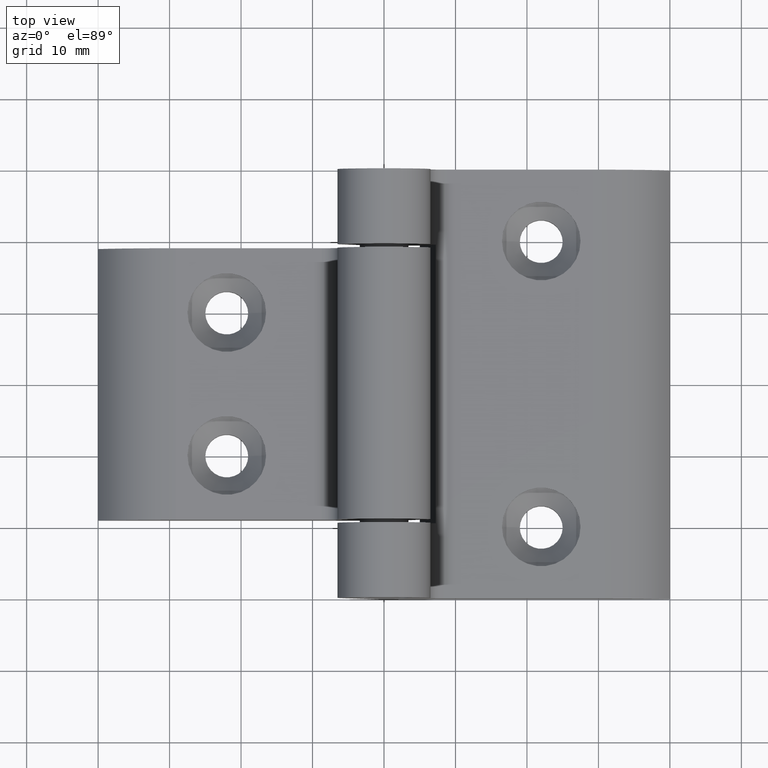
[diagram: clean part render]
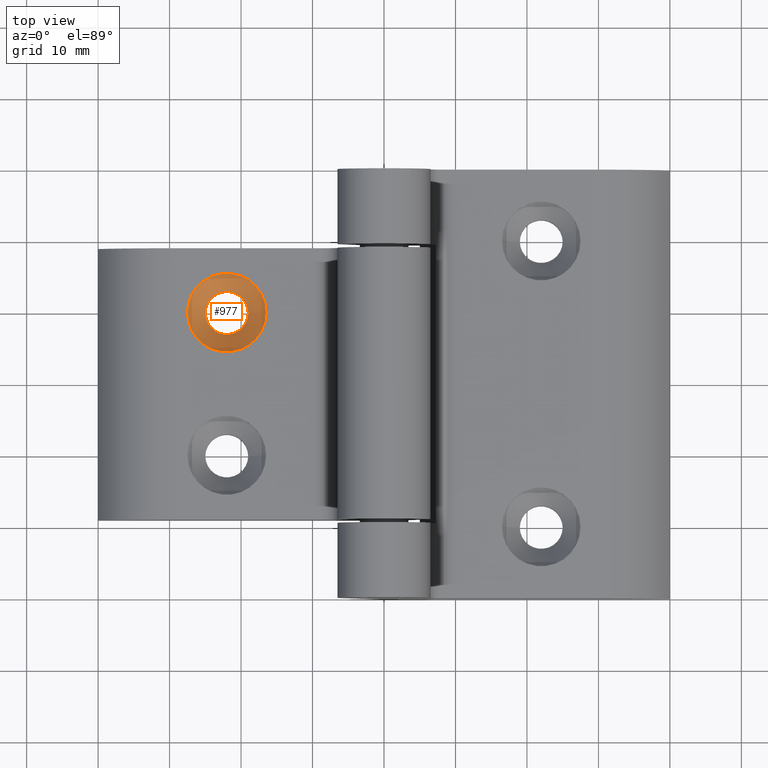
[diagram: same view with one face highlighted and labeled with its STEP entity id]
A machine part, top view. The second image highlights one B-rep face of the part: STEP entity #977.
In plain terms, the highlighted conical surface has half-angle 45 deg.
Its self-contained STEP definition (entity closure, byte-faithful):
#134=FACE_OUTER_BOUND('',#191,.T.);
#191=EDGE_LOOP('',(#828,#829,#830,#831,#832,#833));
#262=LINE('',#1734,#329);
#329=VECTOR('',#1384,4.25);
#388=CIRCLE('',#1153,5.5);
#389=CIRCLE('',#1154,3.);
#390=CIRCLE('',#1155,3.);
#391=CIRCLE('',#1156,5.5);
#476=VERTEX_POINT('',#1730);
#477=VERTEX_POINT('',#1731);
#478=VERTEX_POINT('',#1733);
#479=VERTEX_POINT('',#1735);
#602=EDGE_CURVE('',#476,#477,#388,.T.);
#603=EDGE_CURVE('',#477,#478,#262,.T.);
#604=EDGE_CURVE('',#479,#478,#389,.T.);
#605=EDGE_CURVE('',#478,#479,#390,.T.);
#606=EDGE_CURVE('',#477,#476,#391,.T.);
#828=ORIENTED_EDGE('',*,*,#602,.T.);
#829=ORIENTED_EDGE('',*,*,#603,.T.);
#830=ORIENTED_EDGE('',*,*,#604,.F.);
#831=ORIENTED_EDGE('',*,*,#605,.F.);
#832=ORIENTED_EDGE('',*,*,#603,.F.);
#833=ORIENTED_EDGE('',*,*,#606,.T.);
#948=CONICAL_SURFACE('',#1152,4.25,0.785398163397448);
#977=ADVANCED_FACE('',(#134),#948,.F.);
#1152=AXIS2_PLACEMENT_3D('',#1729,#1380,#1381);
#1153=AXIS2_PLACEMENT_3D('',#1732,#1382,#1383);
#1154=AXIS2_PLACEMENT_3D('',#1736,#1385,#1386);
#1155=AXIS2_PLACEMENT_3D('',#1737,#1387,#1388);
#1156=AXIS2_PLACEMENT_3D('',#1738,#1389,#1390);
#1380=DIRECTION('center_axis',(1.087908341283E-16,0.,1.));
#1381=DIRECTION('ref_axis',(1.,0.,-1.087908341283E-16));
#1382=DIRECTION('center_axis',(1.087908341283E-16,0.,1.));
#1383=DIRECTION('ref_axis',(1.,0.,-1.087908341283E-16));
#1384=DIRECTION('',(0.707106781186547,8.65956056235493E-17,-0.707106781186548));
#1385=DIRECTION('center_axis',(1.087908341283E-16,0.,1.));
#1386=DIRECTION('ref_axis',(1.,0.,-1.087908341283E-16));
#1387=DIRECTION('center_axis',(1.087908341283E-16,0.,1.));
#1388=DIRECTION('ref_axis',(1.,0.,-1.087908341283E-16));
#1389=DIRECTION('center_axis',(1.087908341283E-16,0.,1.));
#1390=DIRECTION('ref_axis',(1.,0.,-1.087908341283E-16));
#1729=CARTESIAN_POINT('Origin',(22.,-10.,-6.75));
#1730=CARTESIAN_POINT('',(27.5,-10.,-5.5));
#1731=CARTESIAN_POINT('',(16.5,-10.,-5.5));
#1732=CARTESIAN_POINT('Origin',(22.,-10.,-5.5));
#1733=CARTESIAN_POINT('',(19.,-10.,-8.00000000000001));
#1734=CARTESIAN_POINT('',(17.75,-10.,-6.75));
#1735=CARTESIAN_POINT('',(25.,-10.,-8.00000000000001));
#1736=CARTESIAN_POINT('Origin',(22.,-10.,-8.));
#1737=CARTESIAN_POINT('Origin',(22.,-10.,-8.));
#1738=CARTESIAN_POINT('Origin',(22.,-10.,-5.5));